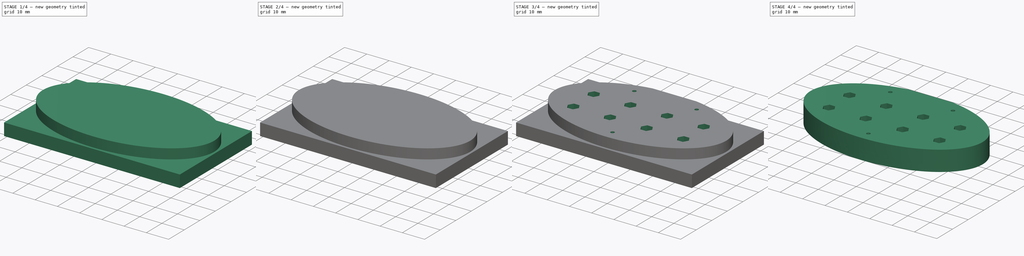
[diagram: build sequence overview — one tinted view per stage of 4, left to right]
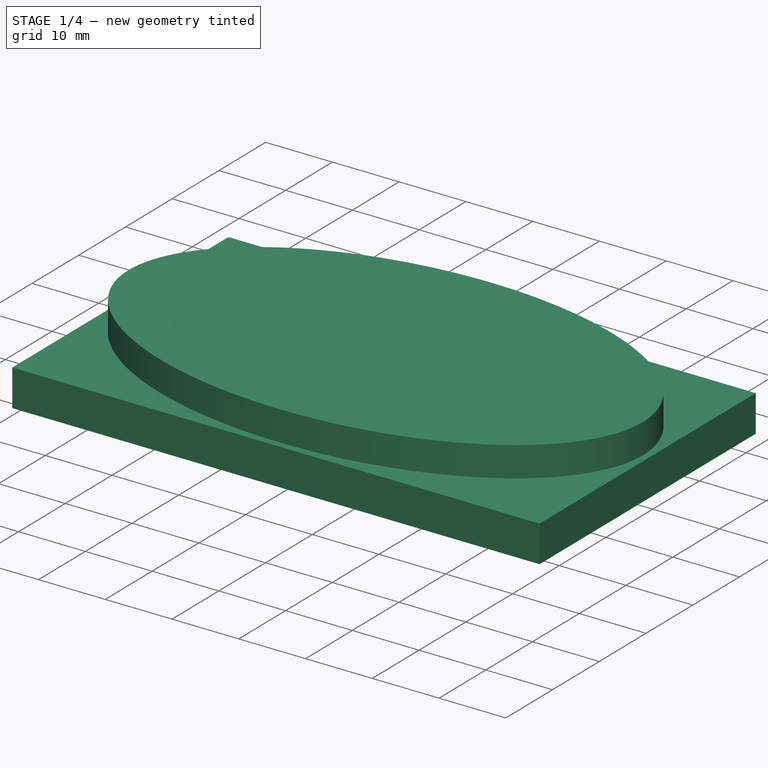
[diagram: stage 1 of 4 — iso view after this stage's code; geometry added in this stage tinted green]
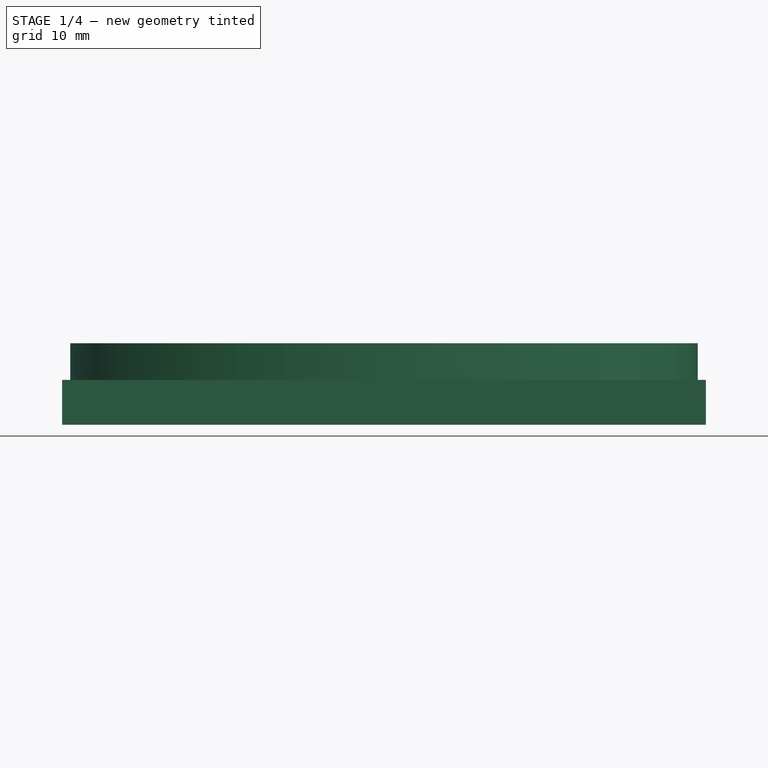
[diagram: stage 1 of 4 — front view after this stage's code; geometry added in this stage tinted green]
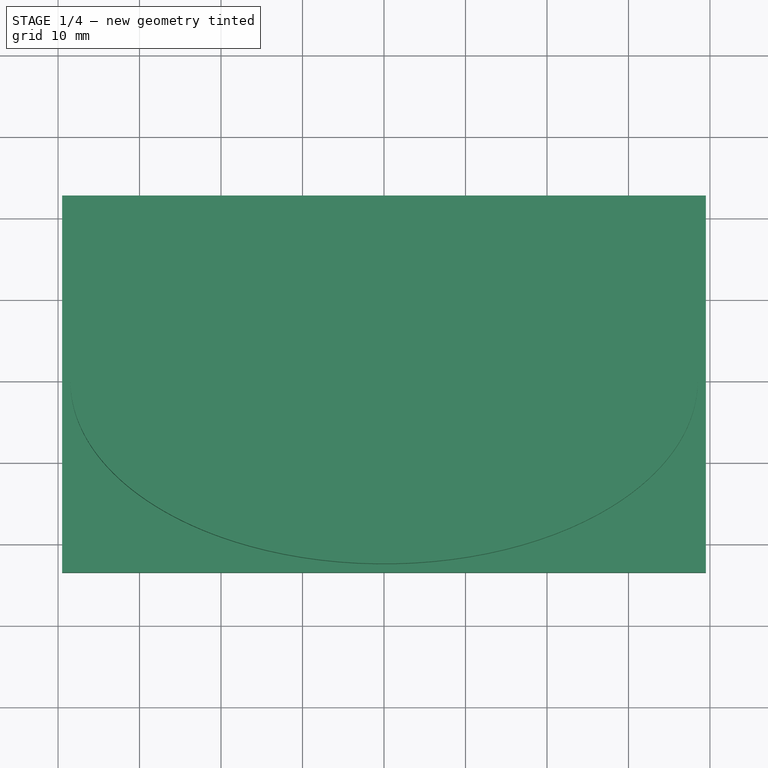
[diagram: stage 1 of 4 — top view after this stage's code; geometry added in this stage tinted green]
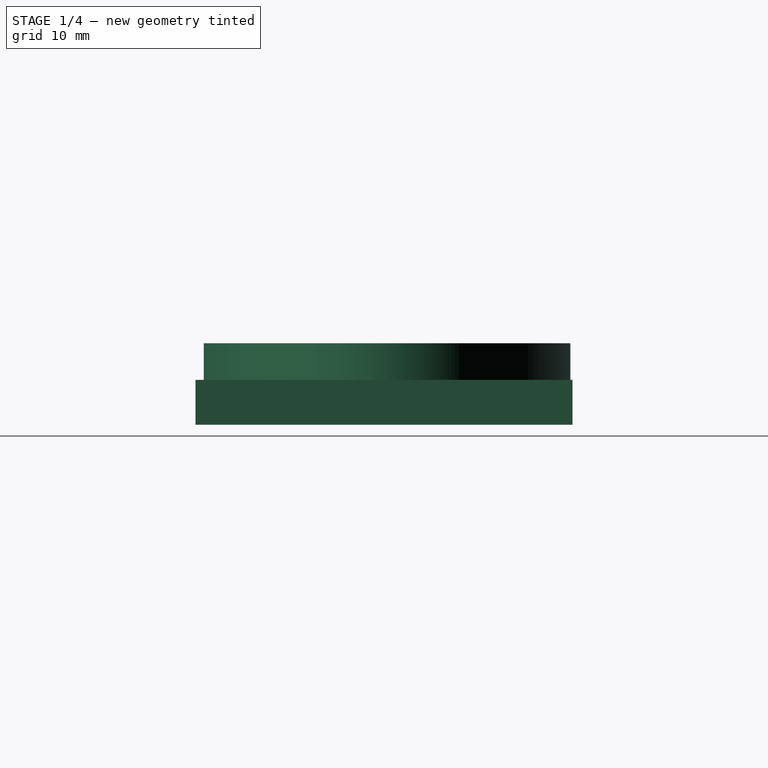
[diagram: stage 1 of 4 — right view after this stage's code; geometry added in this stage tinted green]
FCSTD DOCUMENT  (FreeCAD 0.17R13541 (Git))
Label: Medium-Dense-4-Pixil-Night-Light-ResiZing-66mm-Slot-77mm-Wide-M2-Screws-Bottom-Hexa-SideWays-Vents-Patern-Tweakered-LaserSect
License: All rights reserved
LicenseURL: http://en.wikipedia.org/wiki/All_rights_reserved
objects: Sketcher::SketchObject×7, PartDesign::Pocket×5, Part::Feature×3, PartDesign::Pad×2, PartDesign::Body×1, App::Part×1, Part::Box×1, Part::MultiCommon×1, Part::Cut×1, App::DocumentObjectGroup×1
note: 28 computed .brp shape members not serialized (recipe doc carries the construction recipe); baked Part::Feature solids carry a one-line shape summary decoded from their .brp

FEATURE [Sketcher::SketchObject] Sketch
  MapMode = 5
  Support = -> [XY_Plane001]
  sketch-geometry (6):
    g0: Ellipse CenterX=0 CenterY=0 CenterZ=0 NormalX=0 NormalY=0 NormalZ=1 MajorRadius=38.5 MinorRadius=22.5 AngleXU=0
    g1: LineSegment [constr] StartX=38.5 StartY=0 StartZ=0 EndX=-38.5 EndY=0 EndZ=0
    g2: LineSegment [constr] StartX=0 StartY=22.5 StartZ=0 EndX=0 EndY=-22.5 EndZ=0
    g3: GeomPoint X=31.241 Y=0 Z=0
    g4: GeomPoint X=-31.241 Y=0 Z=0
    g5: LineSegment StartX=-6.25 StartY=-22.2015 StartZ=0 EndX=6.25 EndY=-22.2015 EndZ=0
  constraints (9):
    c: InternalAlignment(g1-g4 -> g0) x4
    c: Coincident(g0,g-1)
    c: PointOnObject(g2,g-2)
    c: Distance(g2,g2) = 45
    c: Distance(g1,g1) = 77
    c: PointOnObject(g5,g0)
    c: PointOnObject(g5,g0)
    c: Horizontal(g5)
    c: Distance(g5,g5) = 12.5
FEATURE [PartDesign::Pad] Pad
  Length = 6
  Length2 = 100
  Profile = -> Sketch
  Type = 0
FEATURE [PartDesign::Body] Body
  Group = -> [Sketch,Pad,Sketch001,Pocket,Sketch002,Pad001,Sketch003,Pocket001,Sketch004,Pocket002,Sketch005,Pocket003,Sketch006,Pocket004]
  Origin = -> Origin001
  Tip = -> Pocket004
FEATURE [App::Part] Part
  Group = -> [Body]
  License = CC BY 3.0
  LicenseURL = http://creativecommons.org/licenses/by/3.0/
  Origin = -> Origin
FEATURE [Part::Box] box_bottom_half_0
  AttacherType = Attacher::AttachEngine3D
  Height = 5.5
  Length = 78.9996
  Placement = pos=(-39.4996,-23.4966,-4) rot=(0,0,1;0rad)
  Width = 46.2555
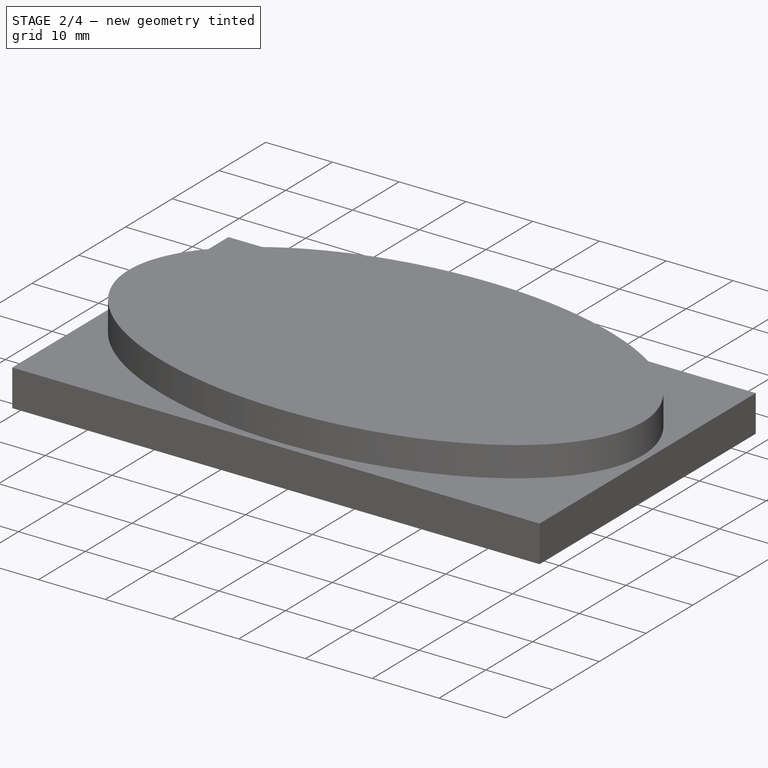
[diagram: stage 2 of 4 — iso view after this stage's code; geometry added in this stage tinted green]
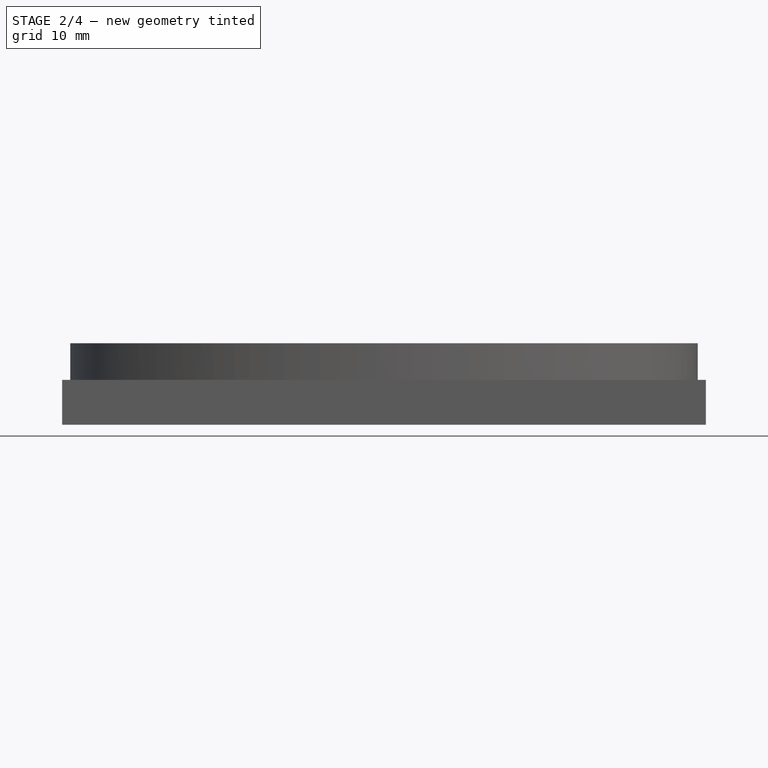
[diagram: stage 2 of 4 — front view after this stage's code; geometry added in this stage tinted green]
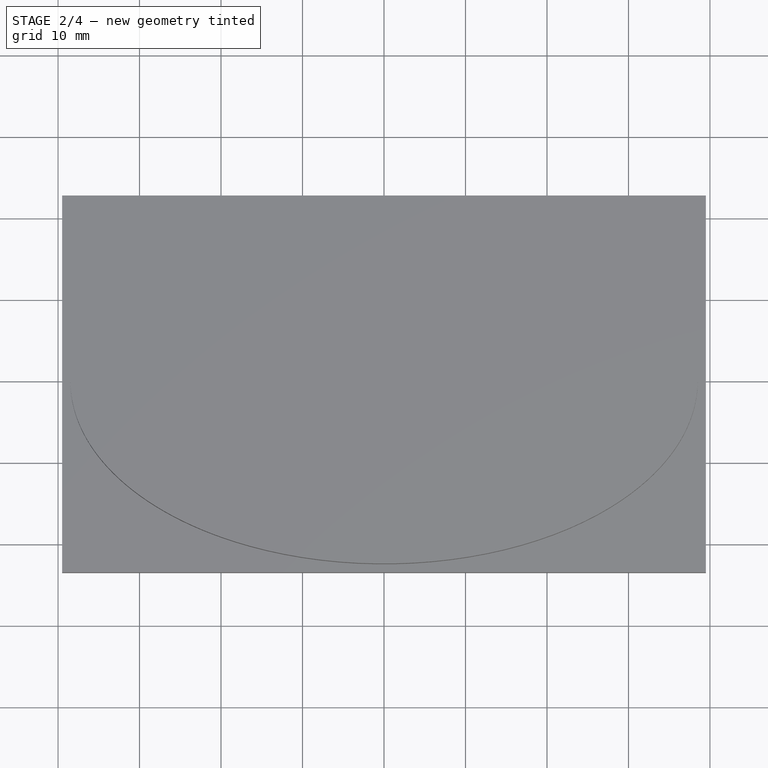
[diagram: stage 2 of 4 — top view after this stage's code; geometry added in this stage tinted green]
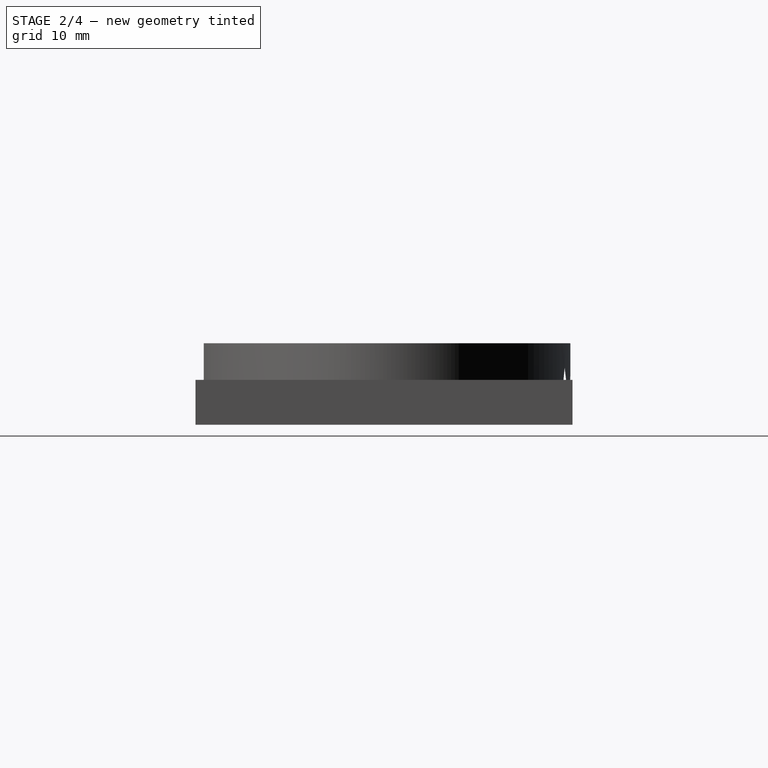
[diagram: stage 2 of 4 — right view after this stage's code; geometry added in this stage tinted green]
FEATURE [Sketcher::SketchObject] Sketch001
  ExternalGeometry = -> [Pad]
  MapMode = 5
  Placement = pos=(0,0,0) rot=(1,0,0;3.14159rad)
  Support = -> [Pad]
  sketch-geometry (9):
    g0: LineSegment StartX=9.55 StartY=-3.6968 StartZ=0 EndX=9.55 EndY=-21.7968 EndZ=0
    g1: LineSegment StartX=9.55 StartY=-21.7968 StartZ=0 EndX=-9.55 EndY=-21.7968 EndZ=0
    g2: LineSegment StartX=-9.55 StartY=-21.7968 StartZ=0 EndX=-9.55 EndY=-3.6968 EndZ=0
    g3: LineSegment StartX=-33 StartY=6.3032 StartZ=0 EndX=33 EndY=6.3032 EndZ=0
    g4: LineSegment StartX=33 StartY=6.3032 StartZ=0 EndX=33 EndY=-3.6968 EndZ=0
    g5: LineSegment StartX=-33 StartY=-3.6968 StartZ=0 EndX=-33 EndY=6.3032 EndZ=0
    g6: GeomPoint X=0 Y=6.3032 Z=0
    g7: LineSegment StartX=-33 StartY=-3.6968 StartZ=0 EndX=-9.55 EndY=-3.6968 EndZ=0
    g8: LineSegment StartX=9.55 StartY=-3.6968 StartZ=0 EndX=33 EndY=-3.6968 EndZ=0
  constraints (26):
    c: Coincident(g0,g1)
    c: Coincident(g1,g2)
    c: Horizontal(g1)
    c: Vertical(g0)
    c: Vertical(g2)
    c: PointOnObject(g1,g-3)
    c: PointOnObject(g0,g-3)
    c: Distance(g1) = 19.1
    c: Distance(g0) = 18.1
    c: Coincident(g3,g4)
    c: Coincident(g5,g3)
    c: Horizontal(g3)
    c: Vertical(g4)
    c: Vertical(g5)
    c: Distance(g4) = 10
    c: Distance(g3) = 66
    c: PointOnObject(g6,g3)
    c: Symmetric(g3,g3,g6)
    c: PointOnObject(g6,g-2)
    c: Coincident(g7,g5)
    c: Coincident(g7,g2)
    c: Horizontal(g7)
    c: Coincident(g8,g0)
    c: Coincident(g8,g4)
    c: Horizontal(g8)
    c: Distance(g2) = 18.1
FEATURE [PartDesign::Pocket] Pocket
  BaseFeature = -> Pad
  Length = 3
  Length2 = 100
  Profile = -> Sketch001
  Type = 0
FEATURE [Sketcher::SketchObject] Sketch002
  ExternalGeometry = -> [Pocket]
  MapMode = 5
  Placement = pos=(0,0,0) rot=(1,0,0;3.14159rad)
  Support = -> [Pocket]
  sketch-geometry (5):
    g0: Ellipse CenterX=0 CenterY=0 CenterZ=0 NormalX=0 NormalY=0 NormalZ=1 MajorRadius=38.5 MinorRadius=22.5 AngleXU=0
    g1: LineSegment [constr] StartX=38.5 StartY=0 StartZ=0 EndX=-38.5 EndY=0 EndZ=0
    g2: LineSegment [constr] StartX=0 StartY=22.5 StartZ=0 EndX=0 EndY=-22.5 EndZ=0
    g3: GeomPoint X=31.241 Y=0 Z=0
    g4: GeomPoint X=-31.241 Y=0 Z=0
  constraints (4):
    c: InternalAlignment(g1-g4 -> g0) x4
    c: Coincident(g0,g-1)
    c: Equal(g0,g-3)
    c: PointOnObject(g2,g-2)
FEATURE [PartDesign::Pad] Pad001
  BaseFeature = -> Pocket
  Length = 3
  Length2 = 100
  Profile = -> Sketch002
  Type = 0
FEATURE [Sketcher::SketchObject] Sketch003
  ExternalGeometry = -> [Pad001]
  MapMode = 5
  Placement = pos=(0,0,-3) rot=(1,0,0;3.14159rad)
  Support = -> [Pad001]
  sketch-geometry (8):
    g0: LineSegment StartX=-33 StartY=2.6882 StartZ=0 EndX=33 EndY=2.6882 EndZ=0
    g1: LineSegment StartX=33 StartY=2.6882 StartZ=0 EndX=33 EndY=-0.0818015 EndZ=0
    g2: LineSegment StartX=33 StartY=-0.0818015 StartZ=0 EndX=-33 EndY=-0.0818015 EndZ=0
    g3: LineSegment StartX=-33 StartY=-0.0818015 StartZ=0 EndX=-33 EndY=2.6882 EndZ=0
    g4: GeomPoint X=0 Y=2.6882 Z=0
    g5: GeomPoint X=33 Y=1.3032 Z=0
    g6: GeomPoint X=33.5 Y=6.3032 Z=0
    g7: GeomPoint X=32.5 Y=-3.6968 Z=0
  constraints (19):
    c: Coincident(g0,g1)
    c: Coincident(g1,g2)
    c: Coincident(g2,g3)
    c: Coincident(g3,g0)
    c: Horizontal(g0)
    c: Horizontal(g2)
    c: Vertical(g1)
    c: Vertical(g3)
    c: Distance(g1) = 2.77
    c: Distance(g0) = 66
    c: PointOnObject(g4,g0)
    c: Symmetric(g0,g0,g4)
    c: PointOnObject(g4,g-2)
    c: PointOnObject(g5,g1)
    c: Symmetric(g0,g1,g5)
    c: PointOnObject(g6,g-3)
    c: PointOnObject(g7,g-4)
    c: Symmetric(g6,g7,g5)
    c: Distance(g7,g-4) = 0.5
FEATURE [PartDesign::Pocket] Pocket001
  BaseFeature = -> Pad001
  Length = 3
  Length2 = 100
  Profile = -> Sketch003
  Type = 0
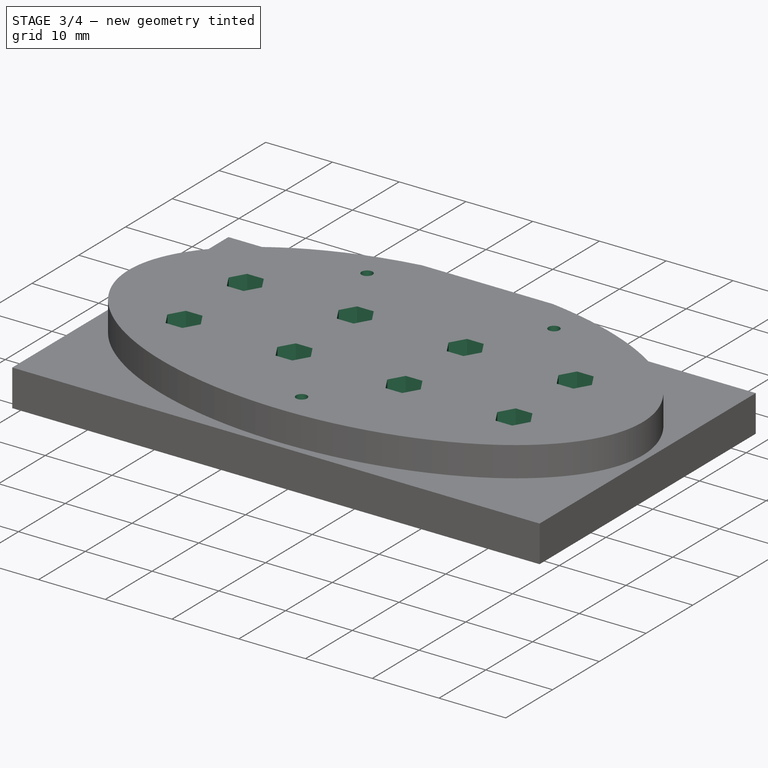
[diagram: stage 3 of 4 — iso view after this stage's code; geometry added in this stage tinted green]
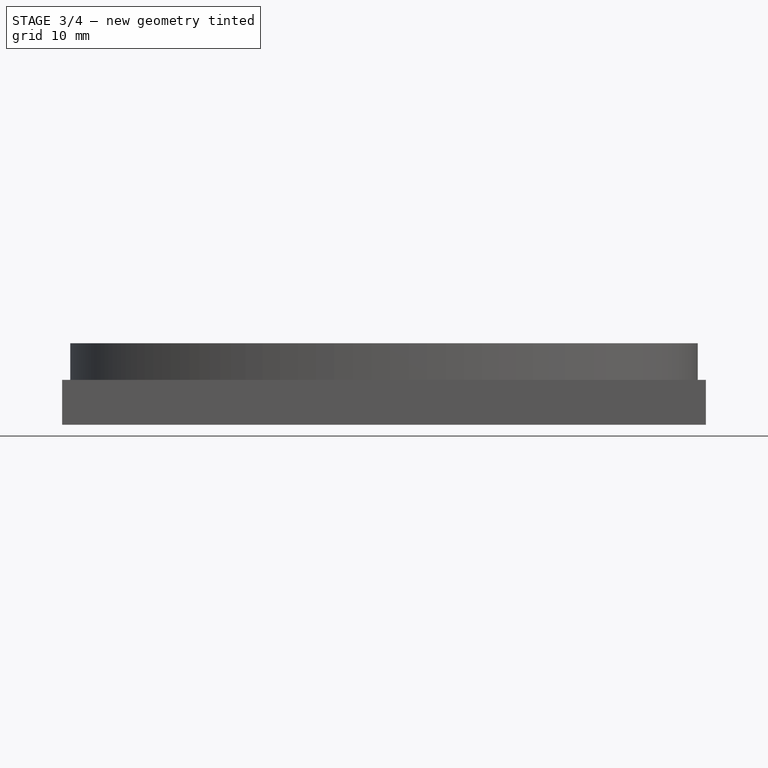
[diagram: stage 3 of 4 — front view after this stage's code; geometry added in this stage tinted green]
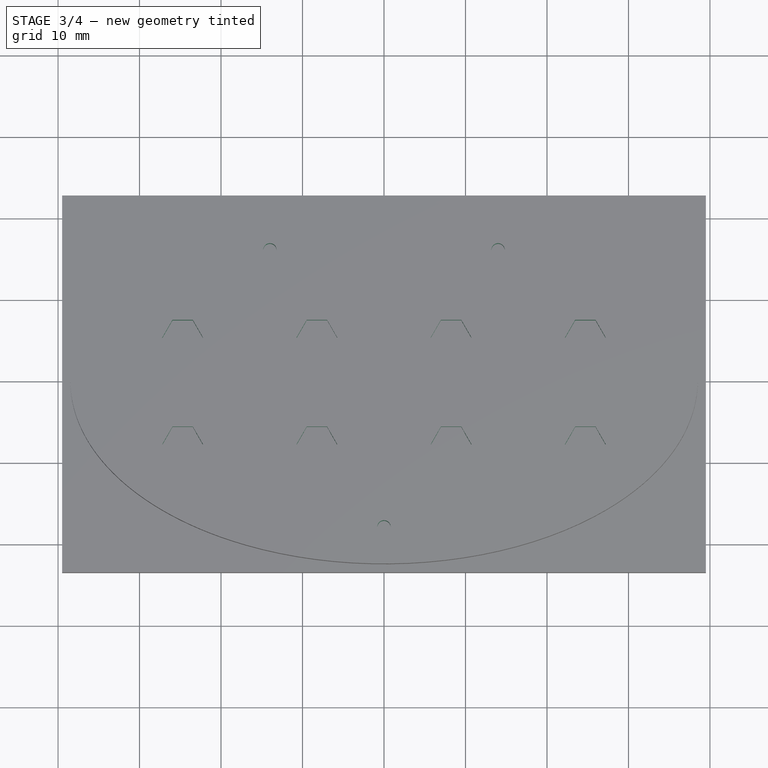
[diagram: stage 3 of 4 — top view after this stage's code; geometry added in this stage tinted green]
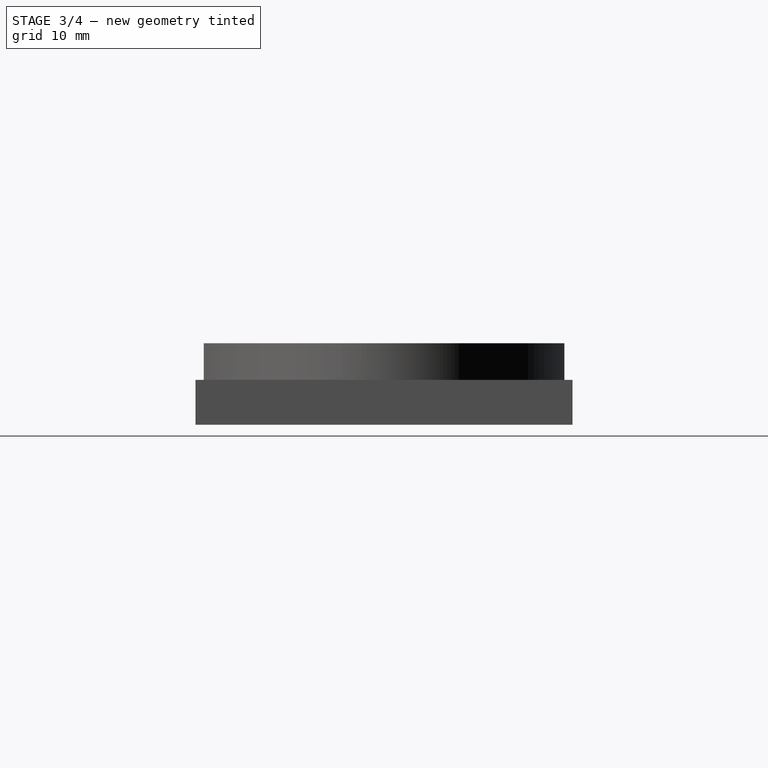
[diagram: stage 3 of 4 — right view after this stage's code; geometry added in this stage tinted green]
FEATURE [Sketcher::SketchObject] Sketch004
  ExternalGeometry = -> [Pocket001]
  MapMode = 5
  Placement = pos=(0,0,-3) rot=(1,0,0;3.14159rad)
  Support = -> [Pocket001]
  sketch-geometry (4):
    g0: LineSegment StartX=-9.8 StartY=-21.7589 StartZ=0 EndX=9.8 EndY=-21.7589 EndZ=0
    g1: LineSegment StartX=9.8 StartY=-21.7589 StartZ=0 EndX=9.8 EndY=-22.7589 EndZ=0
    g2: LineSegment StartX=9.8 StartY=-22.7589 StartZ=0 EndX=-9.8 EndY=-22.7589 EndZ=0
    g3: LineSegment StartX=-9.8 StartY=-22.7589 StartZ=0 EndX=-9.8 EndY=-21.7589 EndZ=0
  constraints (12):
    c: Coincident(g0,g1)
    c: Coincident(g1,g2)
    c: Coincident(g2,g3)
    c: Coincident(g3,g0)
    c: Horizontal(g0)
    c: Horizontal(g2)
    c: Vertical(g1)
    c: Vertical(g3)
    c: PointOnObject(g0,g-3)
    c: PointOnObject(g0,g-3)
    c: Distance(g0) = 19.6
    c: Distance(g1) = 1
FEATURE [PartDesign::Pocket] Pocket002
  BaseFeature = -> Pocket001
  Length = 5
  Length2 = 100
  Profile = -> Sketch004
  Type = 1
FEATURE [Sketcher::SketchObject] Sketch005
  MapMode = 5
  Placement = pos=(0,0,6) rot=(0,0,1;0rad)
  Support = -> [Pocket002]
  sketch-geometry (4):
    g0: Circle CenterX=-14 CenterY=16 CenterZ=0 NormalX=0 NormalY=0 NormalZ=1 AngleXU=0 Radius=0.82
    g1: Circle CenterX=14 CenterY=16 CenterZ=0 NormalX=0 NormalY=0 NormalZ=1 AngleXU=0 Radius=0.82
    g2: Circle CenterX=0 CenterY=-18 CenterZ=0 NormalX=0 NormalY=0 NormalZ=1 AngleXU=0 Radius=0.82
    g3: GeomPoint X=-14.7332 Y=16.3671 Z=0
  constraints (10):
    c: PointOnObject(g2,g-2)
    c: PointOnObject(g3,g0)
    c: Distance(g3,g0) = 0.82
    c: Equal(g0,g2)
    c: Equal(g0,g1)
    c: Distance(g0,g-2) = 14
    c: Distance(g0,g-1) = 16
    c: Distance(g1,g-2) = 14
    c: Distance(g1,g-1) = 16
    c: Distance(g-1,g2) = 18
FEATURE [PartDesign::Pocket] Pocket003
  BaseFeature = -> Pocket002
  Length = 5
  Length2 = 100
  Profile = -> Sketch005
  Type = 1
FEATURE [Sketcher::SketchObject] Sketch006
  ExternalGeometry = -> [Pocket003]
  MapMode = 5
  Placement = pos=(0,0,-3) rot=(1,0,0;3.14159rad)
  Support = -> [Pocket003]
  sketch-geometry (56):
    g0: LineSegment StartX=-22.21 StartY=-5.24686 StartZ=0 EndX=-23.46 EndY=-3.0818 EndZ=0
    g1: LineSegment StartX=-23.46 StartY=-3.0818 StartZ=0 EndX=-25.96 EndY=-3.0818 EndZ=0
    g2: LineSegment StartX=-25.96 StartY=-3.0818 StartZ=0 EndX=-27.21 EndY=-5.24686 EndZ=0
    g3: LineSegment StartX=-27.21 StartY=-5.24686 StartZ=0 EndX=-25.96 EndY=-7.41193 EndZ=0
    g4: LineSegment StartX=-25.96 StartY=-7.41193 StartZ=0 EndX=-23.46 EndY=-7.41193 EndZ=0
    g5: LineSegment StartX=-23.46 StartY=-7.41193 StartZ=0 EndX=-22.21 EndY=-5.24686 EndZ=0
    g6: Circle [constr] CenterX=-24.71 CenterY=-5.24686 CenterZ=0 NormalX=0 NormalY=0 NormalZ=1 AngleXU=0 Radius=2.5
    g7: LineSegment StartX=-23.46 StartY=5.6882 StartZ=0 EndX=-22.21 EndY=7.85326 EndZ=0
    g8: LineSegment StartX=-22.21 StartY=7.85326 StartZ=0 EndX=-23.46 EndY=10.0183 EndZ=0
    g9: LineSegment StartX=-23.46 StartY=10.0183 StartZ=0 EndX=-25.96 EndY=10.0183 EndZ=0
    g10: LineSegment StartX=-25.96 StartY=10.0183 StartZ=0 EndX=-27.21 EndY=7.85326 EndZ=0
    g11: LineSegment StartX=-27.21 StartY=7.85326 StartZ=0 EndX=-25.96 EndY=5.6882 EndZ=0
    g12: LineSegment StartX=-25.96 StartY=5.6882 StartZ=0 EndX=-23.46 EndY=5.6882 EndZ=0
    g13: Circle [constr] CenterX=-24.71 CenterY=7.85326 CenterZ=0 NormalX=0 NormalY=0 NormalZ=1 AngleXU=0 Radius=2.5
    g14: LineSegment StartX=-5.735 StartY=-5.24686 StartZ=0 EndX=-6.985 EndY=-3.0818 EndZ=0
    g15: LineSegment StartX=-6.985 StartY=-3.0818 StartZ=0 EndX=-9.485 EndY=-3.0818 EndZ=0
    g16: LineSegment StartX=-9.485 StartY=-3.0818 StartZ=0 EndX=-10.735 EndY=-5.24686 EndZ=0
    g17: LineSegment StartX=-10.735 StartY=-5.24686 StartZ=0 EndX=-9.485 EndY=-7.41193 EndZ=0
    g18: LineSegment StartX=-9.485 StartY=-7.41193 StartZ=0 EndX=-6.985 EndY=-7.41193 EndZ=0
    g19: LineSegment StartX=-6.985 StartY=-7.41193 StartZ=0 EndX=-5.735 EndY=-5.24686 EndZ=0
    g20: Circle [constr] CenterX=-8.235 CenterY=-5.24686 CenterZ=0 NormalX=0 NormalY=0 NormalZ=1 AngleXU=0 Radius=2.5
    g21: LineSegment StartX=-9.485 StartY=5.6882 StartZ=0 EndX=-6.985 EndY=5.6882 EndZ=0
    g22: LineSegment StartX=-6.985 StartY=5.6882 StartZ=0 EndX=-5.735 EndY=7.85326 EndZ=0
    g23: LineSegment StartX=-5.735 StartY=7.85326 StartZ=0 EndX=-6.985 EndY=10.0183 EndZ=0
    g24: LineSegment StartX=-6.985 StartY=10.0183 StartZ=0 EndX=-9.485 EndY=10.0183 EndZ=0
    g25: LineSegment StartX=-9.485 StartY=10.0183 StartZ=0 EndX=-10.735 EndY=7.85326 EndZ=0
    g26: LineSegment StartX=-10.735 StartY=7.85326 StartZ=0 EndX=-9.485 EndY=5.6882 EndZ=0
    g27: Circle [constr] CenterX=-8.235 CenterY=7.85326 CenterZ=0 NormalX=0 NormalY=0 NormalZ=1 AngleXU=0 Radius=2.5
    g28: LineSegment StartX=10.735 StartY=-5.24686 StartZ=0 EndX=9.485 EndY=-3.0818 EndZ=0
    g29: LineSegment StartX=9.485 StartY=-3.0818 StartZ=0 EndX=6.985 EndY=-3.0818 EndZ=0
    g30: LineSegment StartX=6.985 StartY=-3.0818 StartZ=0 EndX=5.735 EndY=-5.24686 EndZ=0
    g31: LineSegment StartX=5.735 StartY=-5.24686 StartZ=0 EndX=6.985 EndY=-7.41193 EndZ=0
    g32: LineSegment StartX=6.985 StartY=-7.41193 StartZ=0 EndX=9.485 EndY=-7.41193 EndZ=0
    g33: LineSegment StartX=9.485 StartY=-7.41193 StartZ=0 EndX=10.735 EndY=-5.24686 EndZ=0
    g34: Circle [constr] CenterX=8.235 CenterY=-5.24686 CenterZ=0 NormalX=0 NormalY=0 NormalZ=1 AngleXU=0 Radius=2.5
    g35: LineSegment StartX=9.485 StartY=5.6882 StartZ=0 EndX=10.735 EndY=7.85326 EndZ=0
    g36: LineSegment StartX=10.735 StartY=7.85326 StartZ=0 EndX=9.485 EndY=10.0183 EndZ=0
    g37: LineSegment StartX=9.485 StartY=10.0183 StartZ=0 EndX=6.985 EndY=10.0183 EndZ=0
    g38: LineSegment StartX=6.985 StartY=10.0183 StartZ=0 EndX=5.735 EndY=7.85326 EndZ=0
    g39: LineSegment StartX=5.735 StartY=7.85326 StartZ=0 EndX=6.985 EndY=5.6882 EndZ=0
    g40: LineSegment StartX=6.985 StartY=5.6882 StartZ=0 EndX=9.485 EndY=5.6882 EndZ=0
    g41: Circle [constr] CenterX=8.235 CenterY=7.85326 CenterZ=0 NormalX=0 NormalY=0 NormalZ=1 AngleXU=0 Radius=2.5
    g42: LineSegment StartX=27.21 StartY=-5.24686 StartZ=0 EndX=25.96 EndY=-3.0818 EndZ=0
    g43: LineSegment StartX=25.96 StartY=-3.0818 StartZ=0 EndX=23.46 EndY=-3.0818 EndZ=0
    g44: LineSegment StartX=23.46 StartY=-3.0818 StartZ=0 EndX=22.21 EndY=-5.24686 EndZ=0
    g45: LineSegment StartX=22.21 StartY=-5.24686 StartZ=0 EndX=23.46 EndY=-7.41193 EndZ=0
    g46: LineSegment StartX=23.46 StartY=-7.41193 StartZ=0 EndX=25.96 EndY=-7.41193 EndZ=0
    g47: LineSegment StartX=25.96 StartY=-7.41193 StartZ=0 EndX=27.21 EndY=-5.24686 EndZ=0
    g48: Circle [constr] CenterX=24.71 CenterY=-5.24686 CenterZ=0 NormalX=0 NormalY=0 NormalZ=1 AngleXU=0 Radius=2.5
    g49: LineSegment StartX=25.96 StartY=5.6882 StartZ=0 EndX=27.21 EndY=7.85326 EndZ=0
    g50: LineSegment StartX=27.21 StartY=7.85326 StartZ=0 EndX=25.96 EndY=10.0183 EndZ=0
    g51: LineSegment StartX=25.96 StartY=10.0183 StartZ=0 EndX=23.46 EndY=10.0183 EndZ=0
    g52: LineSegment StartX=23.46 StartY=10.0183 StartZ=0 EndX=22.21 EndY=7.85326 EndZ=0
    g53: LineSegment StartX=22.21 StartY=7.85326 StartZ=0 EndX=23.46 EndY=5.6882 EndZ=0
    g54: LineSegment StartX=23.46 StartY=5.6882 StartZ=0 EndX=25.96 EndY=5.6882 EndZ=0
    g55: Circle [constr] CenterX=24.71 CenterY=7.85326 CenterZ=0 NormalX=0 NormalY=0 NormalZ=1 AngleXU=0 Radius=2.5
  constraints (136):
    c: Coincident(g0,g1)
    c: Coincident(g1,g2)
    c: Coincident(g2,g3)
    c: Coincident(g3,g4)
    c: Coincident(g4,g5)
    c: Coincident(g5,g0)
    c: Equal(g0, g1-g5) x5
    c: PointOnObject(g0,g6)
    c: PointOnObject(g1,g6)
    c: PointOnObject(g2,g6)
    c: PointOnObject(g3,g6)
    c: PointOnObject(g4,g6)
    c: PointOnObject(g5,g6)
    c: Distance(g1,g-3) = 3
    c: Coincident(g7,g8)
    c: Coincident(g8,g9)
    c: Coincident(g9,g10)
    c: Coincident(g10,g11)
    c: Coincident(g11,g12)
    c: Coincident(g12,g7)
    c: Equal(g7, g8-g12) x5
    c: PointOnObject(g7,g13)
    c: PointOnObject(g8,g13)
    c: PointOnObject(g9,g13)
    c: PointOnObject(g10,g13)
    c: PointOnObject(g11,g13)
    c: PointOnObject(g12,g13)
    c: Distance(g11,g-4) = 3
    c: Distance(g0,g-3) = 3
    c: Distance(g7,g-4) = 3
    c: Distance(g10,g-2) = 27.21
    c: Distance(g2,g-2) = 27.21
    c: Distance(g7,g10) = 5
    c: Distance(g2,g0) = 5
    c: Coincident(g14,g15)
    c: Coincident(g15,g16)
    c: Coincident(g16,g17)
    c: Coincident(g17,g18)
    c: Coincident(g18,g19)
    c: Coincident(g19,g14)
    c: Equal(g14, g15-g19) x5
    c: PointOnObject(g14,g20)
    c: PointOnObject(g15,g20)
    c: PointOnObject(g16,g20)
    c: PointOnObject(g17,g20)
    c: PointOnObject(g18,g20)
    c: PointOnObject(g19,g20)
    c: Coincident(g21,g22)
    c: Coincident(g22,g23)
    c: Coincident(g23,g24)
    c: Coincident(g24,g25)
    c: Coincident(g25,g26)
    c: Coincident(g26,g21)
    c: Equal(g21, g22-g26) x5
    c: PointOnObject(g21,g27)
    c: PointOnObject(g22,g27)
    c: PointOnObject(g23,g27)
    c: PointOnObject(g24,g27)
    c: PointOnObject(g25,g27)
    c: PointOnObject(g26,g27)
    c: Distance(g21,g24) = 5
    c: Distance(g16,g14) = 5
    c: Coincident(g28,g29)
    c: Coincident(g29,g30)
    c: Coincident(g30,g31)
    c: Coincident(g31,g32)
    c: Coincident(g32,g33)
    c: Coincident(g33,g28)
    c: Equal(g28, g29-g33) x5
    c: PointOnObject(g28,g34)
    c: PointOnObject(g29,g34)
    c: PointOnObject(g30,g34)
    c: PointOnObject(g31,g34)
    c: PointOnObject(g32,g34)
    c: PointOnObject(g33,g34)
    c: Coincident(g35,g36)
    c: Coincident(g36,g37)
    c: Coincident(g37,g38)
    c: Coincident(g38,g39)
    c: Coincident(g39,g40)
    c: Coincident(g40,g35)
    c: Equal(g35, g36-g40) x5
    c: PointOnObject(g35,g41)
    c: PointOnObject(g36,g41)
    c: PointOnObject(g37,g41)
    c: PointOnObject(g38,g41)
    c: PointOnObject(g39,g41)
    c: PointOnObject(g40,g41)
    c: Distance(g35,g38) = 5
    c: Distance(g30,g28) = 5
    c: Coincident(g42,g43)
    c: Coincident(g43,g44)
    c: Coincident(g44,g45)
    c: Coincident(g45,g46)
    c: Coincident(g46,g47)
    c: Coincident(g47,g42)
    c: Equal(g42, g43-g47) x5
    c: PointOnObject(g42,g48)
    c: PointOnObject(g43,g48)
    c: PointOnObject(g44,g48)
    c: PointOnObject(g45,g48)
    c: PointOnObject(g46,g48)
    c: PointOnObject(g47,g48)
    c: Coincident(g49,g50)
    c: Coincident(g50,g51)
    c: Coincident(g51,g52)
    c: Coincident(g52,g53)
    c: Coincident(g53,g54)
    c: Coincident(g54,g49)
    c: Equal(g49, g50-g54) x5
    c: PointOnObject(g49,g55)
    c: PointOnObject(g50,g55)
    c: PointOnObject(g51,g55)
    c: PointOnObject(g52,g55)
    c: PointOnObject(g53,g55)
    c: PointOnObject(g54,g55)
    c: Distance(g49,g52) = 5
    c: Distance(g44,g42) = 5
    c: Distance(g16,g-2) = 10.735
    c: Distance(g15,g-3) = 3
    c: Distance(g14,g-3) = 3
    c: Distance(g29,g-3) = 3
    c: Distance(g28,g-3) = 3
    c: Distance(g28,g-2) = 10.735
    c: Distance(g43,g-3) = 3
    c: Distance(g42,g-3) = 3
    c: Distance(g42,g-2) = 27.21
    c: Distance(g39,g-4) = 3
    c: Distance(g35,g-2) = 10.735
    c: Distance(g35,g-4) = 3
    c: Distance(g49,g-4) = 3
    c: Distance(g53,g-4) = 3
    c: Distance(g49,g-2) = 27.21
    c: Distance(g21,g-4) = 3
    c: Distance(g21,g-4) = 3
    c: Distance(g25,g-2) = 10.735
FEATURE [PartDesign::Pocket] Pocket004
  BaseFeature = -> Pocket003
  Length = 5
  Length2 = 100
  Profile = -> Sketch006
  Type = 1
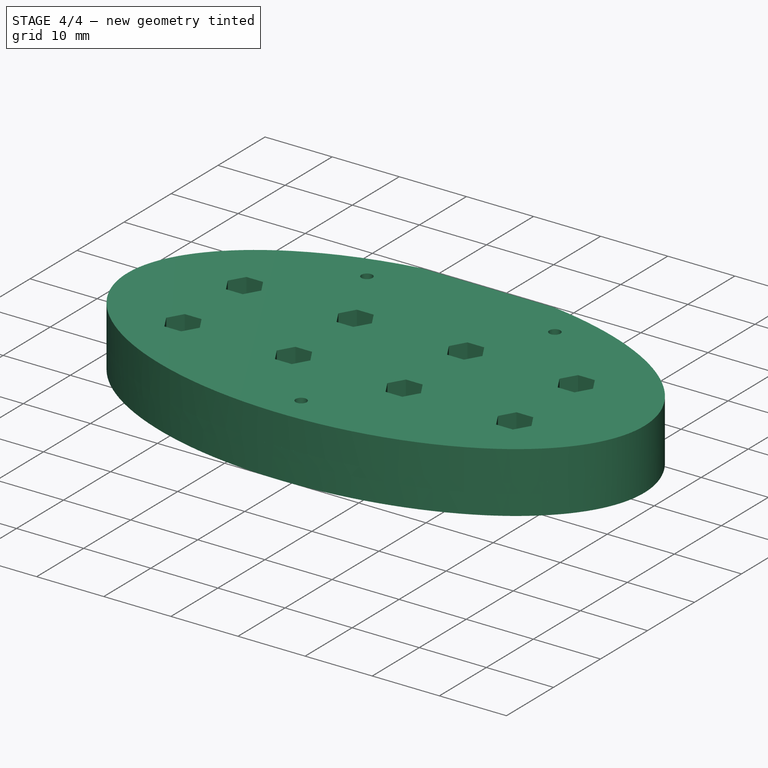
[diagram: stage 4 of 4 — iso view after this stage's code; geometry added in this stage tinted green]
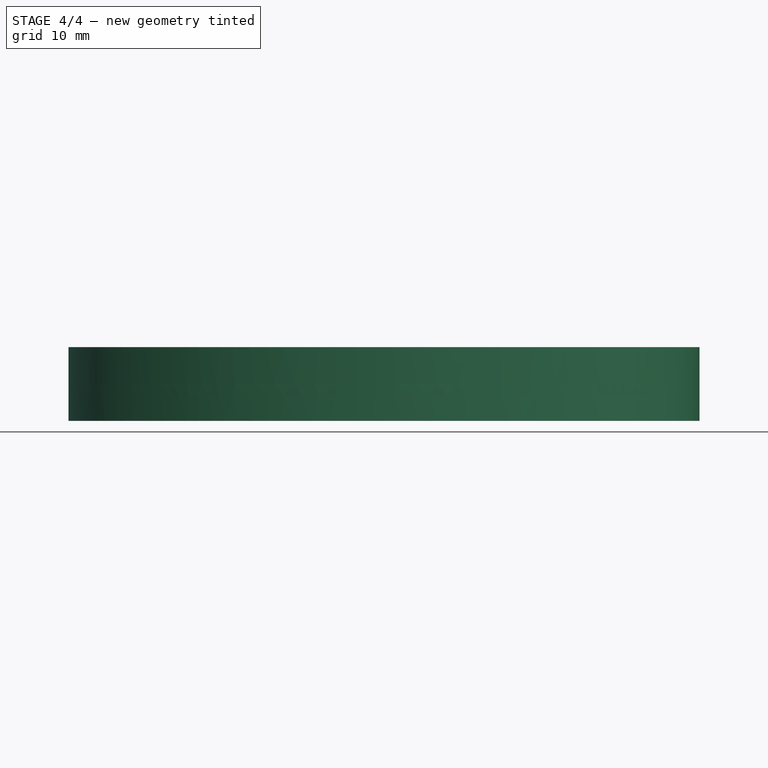
[diagram: stage 4 of 4 — front view after this stage's code; geometry added in this stage tinted green]
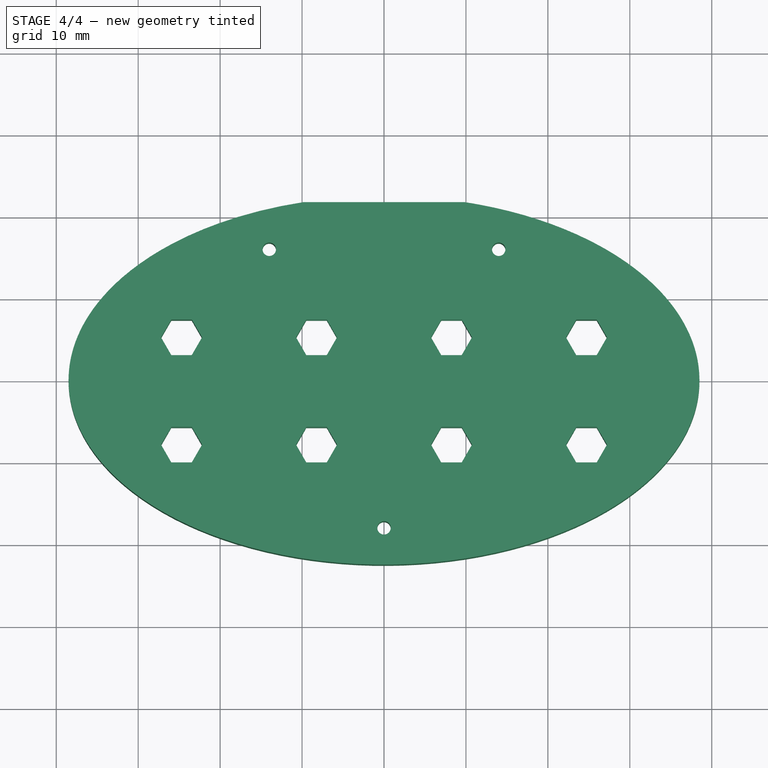
[diagram: stage 4 of 4 — top view after this stage's code; geometry added in this stage tinted green]
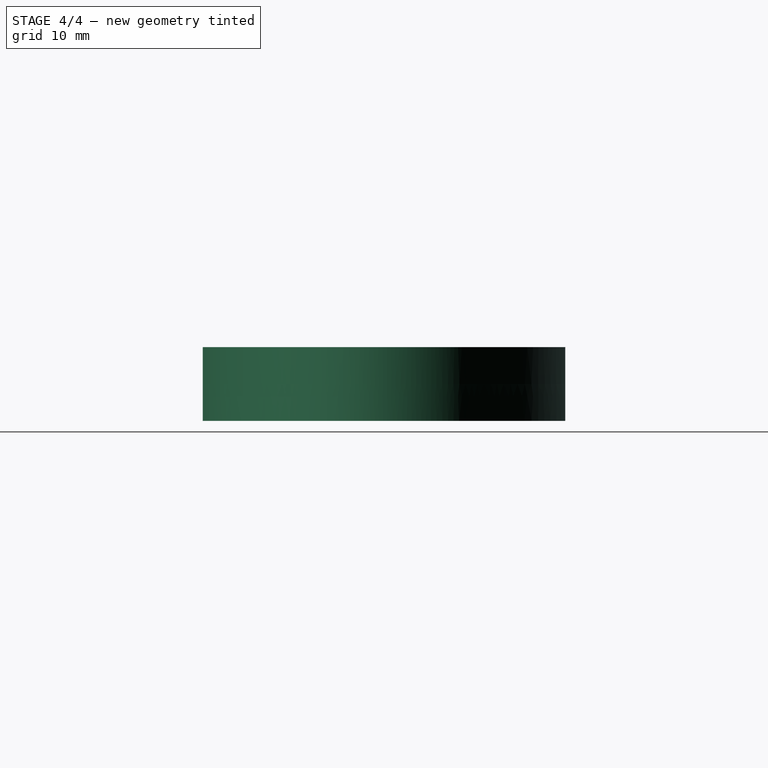
[diagram: stage 4 of 4 — right view after this stage's code; geometry added in this stage tinted green]
FEATURE [Part::MultiCommon] bottom_half_0
  Shapes = -> [Body,box_bottom_half_0]
FEATURE [Part::Cut] top_half_0
  Base = -> Body
  Tool = -> box_bottom_half_0
FEATURE [Part::Feature] MyLayer
  Placement = pos=(0,0,1.5) rot=(0,0,1;0rad)
  shape: bbox 77 x 44.26 x 1e-05 mm, 0 faces, 0 solids (baked)
FEATURE [Part::Feature] MyLayer001
  Placement = pos=(81.9999,0,-1.5) rot=(0,0,1;0rad)
  shape: bbox 77 x 44.26 x 1e-05 mm, 0 faces, 0 solids (baked)
FEATURE [Part::Feature] MyLayer002
  Placement = pos=(164,0,-4.5) rot=(0,0,1;0rad)
  shape: bbox 77 x 44.26 x 1e-05 mm, 0 faces, 0 solids (baked)
FEATURE [App::DocumentObjectGroup] Body_Slices
  Group = -> [MyLayer,MyLayer001,MyLayer002]
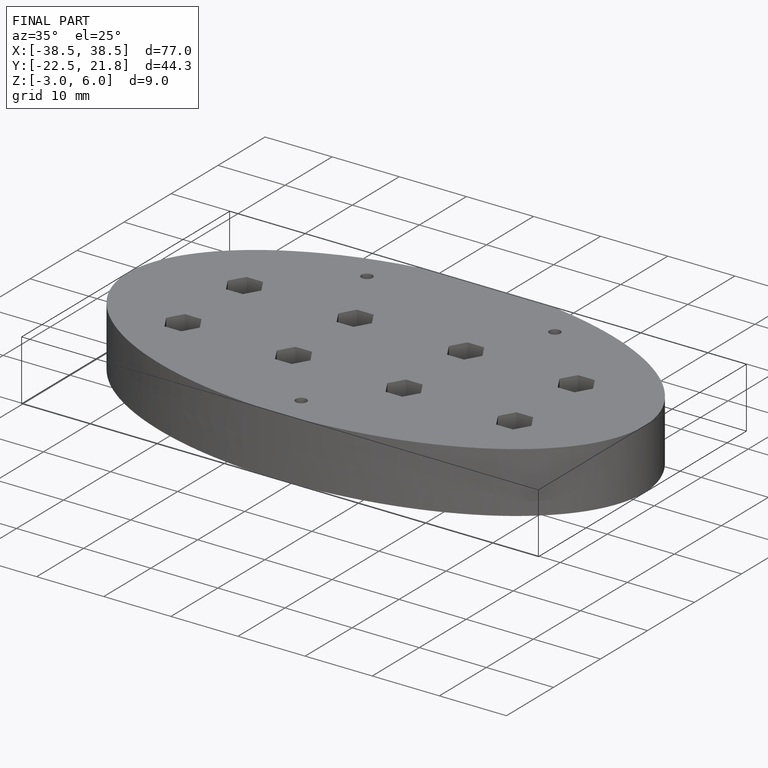
[diagram: finished part — iso view with bounding-box wireframe]
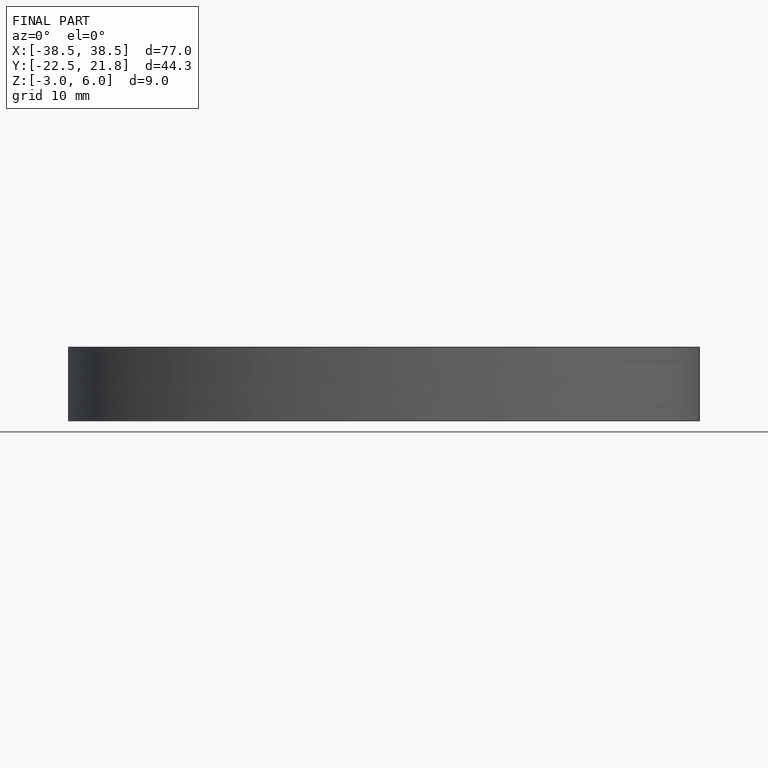
[diagram: finished part — front view with bounding-box wireframe]
